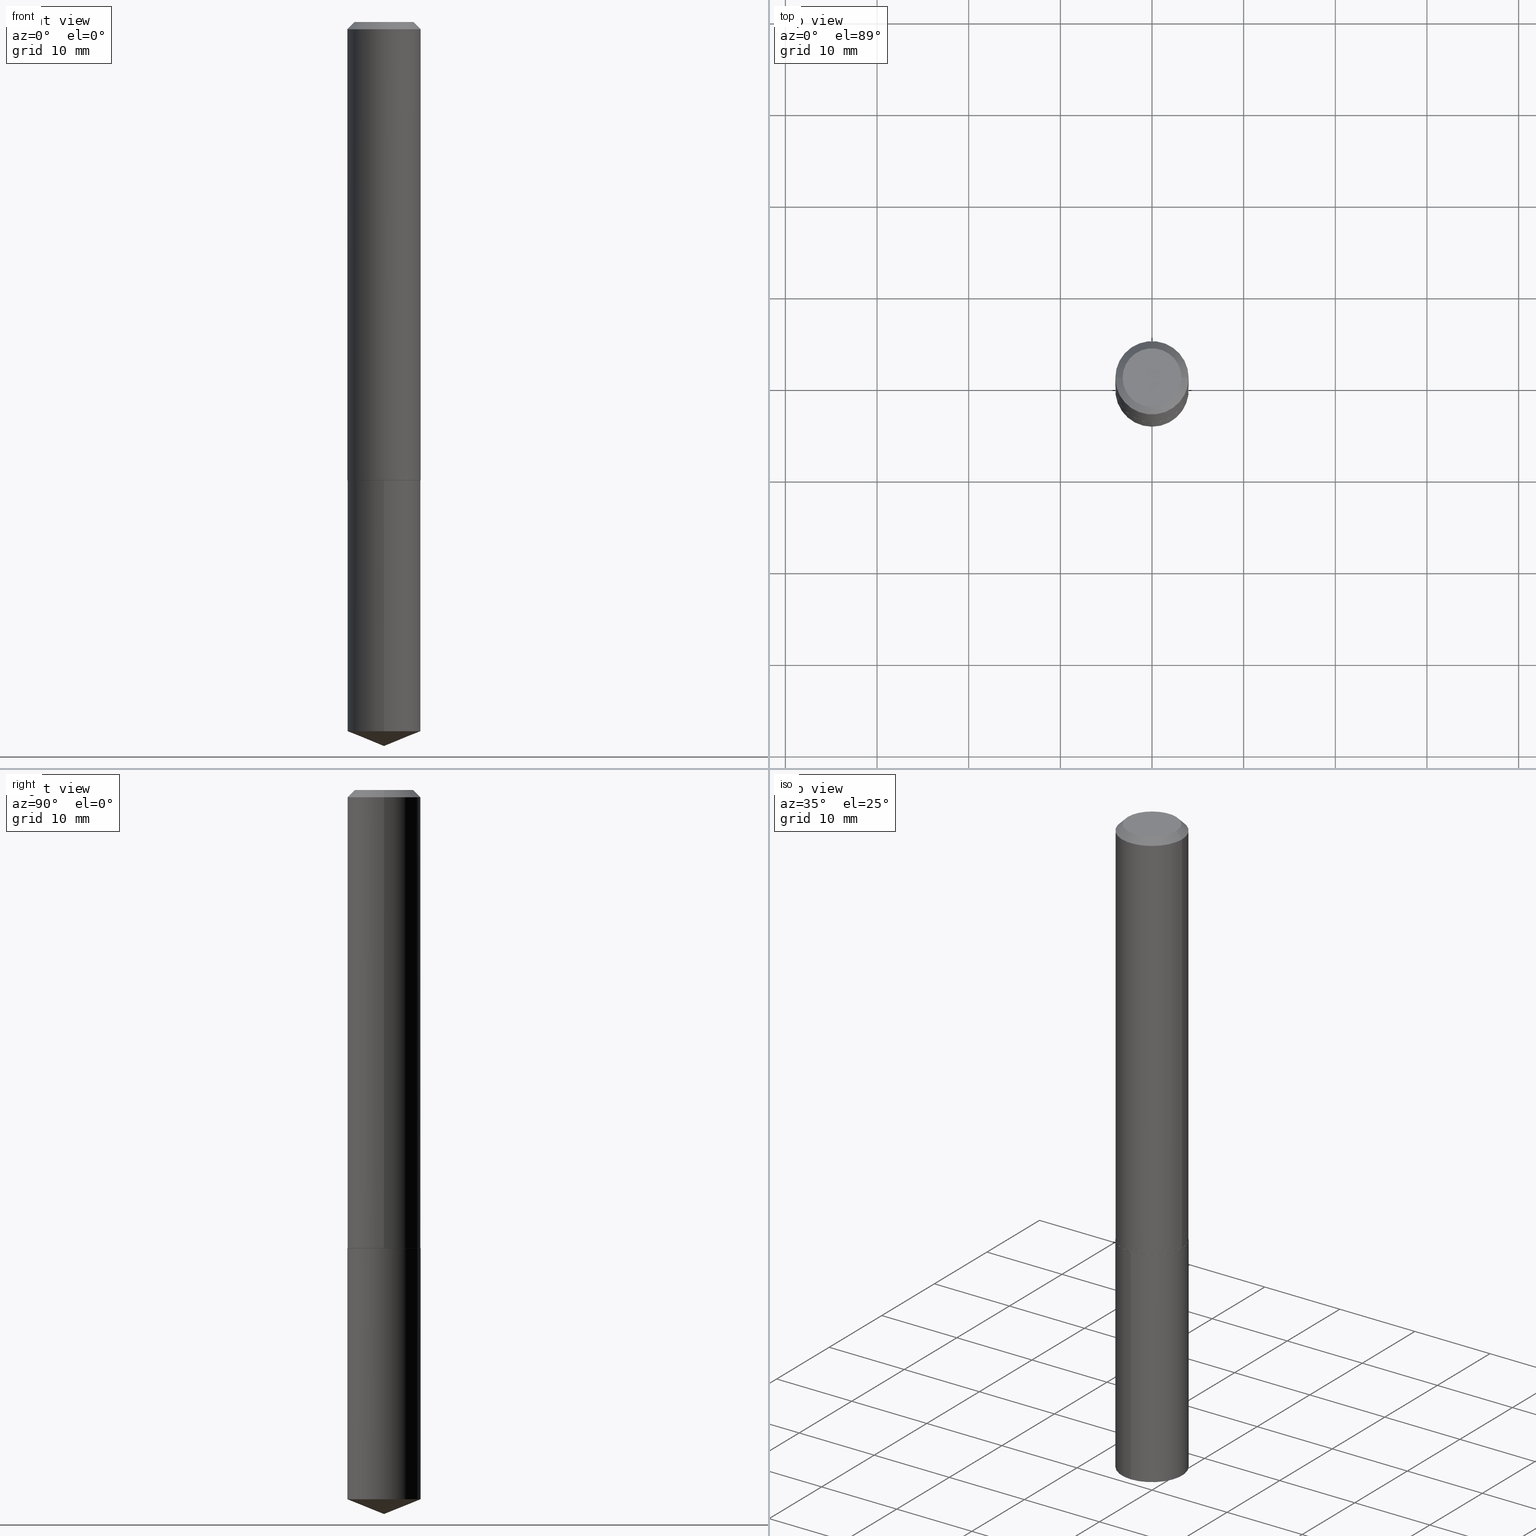
[diagram: canonical four-view strip — front | top / right | iso, engineering-drawing reading convention]
A machine part, canonical four-view strip (front | top / right | iso — engineering-drawing reading convention). The complete STEP part file that produces these views, byte-faithful:
ISO-10303-21;
HEADER;
FILE_DESCRIPTION (( 'STEP AP203' ),
    '1' );
FILE_NAME ('69170.STEP',
    '2024-04-23T14:46:03',
    ( '' ),
    ( '' ),
    'SwSTEP 2.0',
    'SolidWorks 2023',
    '' );
FILE_SCHEMA (( 'CONFIG_CONTROL_DESIGN' ));
ENDSEC;

DATA;
#1 = CARTESIAN_POINT ( 'NONE',  ( 7.642090019328603538E-31, -1.091087918388490390E-16, -0.03125000000000021511 ) ) ;
#2 = DIRECTION ( 'NONE',  ( 1.000000000000000000, -6.982962677686268288E-15, 0.000000000000000000 ) ) ;
#3 = CC_DESIGN_PERSON_AND_ORGANIZATION_ASSIGNMENT ( #48, #162, ( #182 ) ) ;
#4 = ORIENTED_EDGE ( 'NONE', *, *, #214, .F. ) ;
#5 = AXIS2_PLACEMENT_3D ( 'NONE', #250, #99, #66 ) ;
#6 = PERSON ( 'UNSPECIFIED', 'UNSPECIFIED', 'UNSPECIFIED', ('UNSPECIFIED'), ('UNSPECIFIED'), ('UNSPECIFIED') ) ;
#7 = CARTESIAN_POINT ( 'NONE',  ( 0.1575000000000000011, -1.189637226487865274E-15, -0.03125000000000021511 ) ) ;
#8 = ORIENTED_EDGE ( 'NONE', *, *, #189, .F. ) ;
#9 = PRODUCT_DEFINITION_SHAPE ( 'NONE', 'NONE',  #182 ) ;
#10 = DIRECTION ( 'NONE',  ( 1.000000000000000000, -6.982962677686268288E-15, 0.000000000000000000 ) ) ;
#11 = DIMENSIONAL_EXPONENTS ( 1.000000000000000000, 0.000000000000000000, 0.000000000000000000, 0.000000000000000000, 0.000000000000000000, 0.000000000000000000, 0.000000000000000000 ) ;
#12 = ADVANCED_FACE ( 'NONE', ( #382 ), #298, .T. ) ;
#13 = DIRECTION ( 'NONE',  ( 1.000000000000000000, -6.982962677686265922E-15, 4.876176775795935232E-29 ) ) ;
#14 = CIRCLE ( 'NONE', #108, 0.1262499999999999734 ) ;
#15 = ADVANCED_FACE ( 'NONE', ( #385 ), #117, .T. ) ;
#16 = COORDINATED_UNIVERSAL_TIME_OFFSET ( 5, 0, .BEHIND. ) ;
#17 = PERSON_AND_ORGANIZATION ( #6, #39 ) ;
#18 = ORIENTED_EDGE ( 'NONE', *, *, #214, .T. ) ;
#19 = FACE_OUTER_BOUND ( 'NONE', #128, .T. ) ;
#20 = EDGE_LOOP ( 'NONE', ( #289, #262, #4 ) ) ;
#21 = ADVANCED_FACE ( 'NONE', ( #232 ), #383, .F. ) ;
#22 =( NAMED_UNIT ( * ) SI_UNIT ( $, .STERADIAN. ) SOLID_ANGLE_UNIT ( ) );
#23 = VECTOR ( 'NONE', #183, 39.37007874015748143 ) ;
#24 = EDGE_LOOP ( 'NONE', ( #55, #265, #167, #256 ) ) ;
#25 = AXIS2_PLACEMENT_3D ( 'NONE', #157, #53, #136 ) ;
#26 = APPROVAL_STATUS ( 'not_yet_approved' ) ;
#27 = LINE ( 'NONE', #331, #32 ) ;
#28 = CALENDAR_DATE ( 2024, 23, 4 ) ;
#29 = DIRECTION ( 'NONE',  ( -6.982962677686265922E-15, -1.000000000000000000, 3.498761904101816908E-15 ) ) ;
#30 = EDGE_CURVE ( 'NONE', #318, #379, #388, .T. ) ;
#31 = CARTESIAN_POINT ( 'NONE',  ( 0.1575000000000001399, -1.099816621735587875E-15, 7.679978421878605039E-30 ) ) ;
#32 = VECTOR ( 'NONE', #302, 39.37007874015748143 ) ;
#33 = AXIS2_PLACEMENT_3D ( 'NONE', #95, #305, #156 ) ;
#34 = ORIENTED_EDGE ( 'NONE', *, *, #245, .T. ) ;
#35 = DATE_AND_TIME ( #144, #365 ) ;
#36 = PLANE ( 'NONE',  #285 ) ;
#37 = DIRECTION ( 'NONE',  ( 0.7071067811865451302, -7.319954787623248157E-15, -0.7071067811865499042 ) ) ;
#38 = AXIS2_PLACEMENT_3D ( 'NONE', #303, #47, #94 ) ;
#39 = ORGANIZATION ( 'UNSPECIFIED', 'UNSPECIFIED', '' ) ;
#40 = DIRECTION ( 'NONE',  ( -1.000000000000000000, 6.982962677686265922E-15, 0.000000000000000000 ) ) ;
#41 = APPROVAL ( #288, 'UNSPECIFIED' ) ;
#42 = DIRECTION ( 'NONE',  ( 0.7071067811862336017, -2.468850131078969088E-15, 0.7071067811868614328 ) ) ;
#43 = EDGE_LOOP ( 'NONE', ( #229, #353, #277, #169 ) ) ;
#44 = LINE ( 'NONE', #218, #96 ) ;
#45 = ORIENTED_EDGE ( 'NONE', *, *, #235, .F. ) ;
#46 = AXIS2_PLACEMENT_3D ( 'NONE', #372, #342, #75 ) ;
#47 = DIRECTION ( 'NONE',  ( -2.447474477797698207E-29, 3.488609102938218412E-15, 1.000000000000000000 ) ) ;
#48 = PERSON_AND_ORGANIZATION ( #6, #39 ) ;
#49 = ADVANCED_FACE ( 'NONE', ( #61 ), #159, .T. ) ;
#50 = MECHANICAL_CONTEXT ( 'NONE', #349, 'mechanical' ) ;
#51 =( NAMED_UNIT ( * ) PLANE_ANGLE_UNIT ( ) SI_UNIT ( $, .RADIAN. ) );
#52 = VERTEX_POINT ( 'NONE', #234 ) ;
#53 = DIRECTION ( 'NONE',  ( -2.447474477797698207E-29, 3.488609102938218412E-15, 1.000000000000000000 ) ) ;
#54 = CC_DESIGN_DATE_AND_TIME_ASSIGNMENT ( #133, #255, ( #182 ) ) ;
#55 = ORIENTED_EDGE ( 'NONE', *, *, #123, .F. ) ;
#56 = COORDINATED_UNIVERSAL_TIME_OFFSET ( 5, 0, .BEHIND. ) ;
#57 = VERTEX_POINT ( 'NONE', #92 ) ;
#58 = VECTOR ( 'NONE', #309, 39.37007874015748143 ) ;
#59 = DIRECTION ( 'NONE',  ( 1.000000000000000000, -6.982962677686268288E-15, 0.000000000000000000 ) ) ;
#60 = ORIENTED_EDGE ( 'NONE', *, *, #280, .T. ) ;
#61 = FACE_OUTER_BOUND ( 'NONE', #346, .T. ) ;
#62 = DIRECTION ( 'NONE',  ( -2.445468806185136597E-29, 3.491481338843145583E-15, 1.000000000000000000 ) ) ;
#63 = APPROVAL_ROLE ( '' ) ;
#64 = ORIENTED_EDGE ( 'NONE', *, *, #336, .T. ) ;
#65 = CARTESIAN_POINT ( 'NONE',  ( 1.119104808822231954E-15, 0.1574999999999893707, -3.046565869430963858 ) ) ;
#66 = DIRECTION ( 'NONE',  ( 1.000000000000000000, -6.982962677686265922E-15, 0.000000000000000000 ) ) ;
#67 = CIRCLE ( 'NONE', #260, 0.1570000000000008056 ) ;
#68 = DIRECTION ( 'NONE',  ( 1.000000000000000000, -6.982962677686267499E-15, 4.876009584780190244E-29 ) ) ;
#69 = DIRECTION ( 'NONE',  ( -2.445468806185136597E-29, 3.491481338843145583E-15, 1.000000000000000000 ) ) ;
#70 = VERTEX_POINT ( 'NONE', #148 ) ;
#71 = EDGE_CURVE ( 'NONE', #160, #107, #14, .T. ) ;
#72 = DIRECTION ( 'NONE',  ( -2.445468806185136597E-29, 3.491481338843145583E-15, 1.000000000000000000 ) ) ;
#73 = AXIS2_PLACEMENT_3D ( 'NONE', #172, #86, #296 ) ;
#74 = LOCAL_TIME ( 10, 46, 3.000000000000000000, #147 ) ;
#75 = DIRECTION ( 'NONE',  ( 1.000000000000000000, 0.000000000000000000, 0.000000000000000000 ) ) ;
#76 = EDGE_CURVE ( 'NONE', #318, #52, #297, .T. ) ;
#77 = CARTESIAN_POINT ( 'NONE',  ( -0.1575000000000002787, -5.752130466021151023E-15, -1.968000000000000194 ) ) ;
#78 = CARTESIAN_POINT ( 'NONE',  ( -0.1575000000000002787, -5.752130466021151023E-15, -1.968000000000000194 ) ) ;
#79 = ORIENTED_EDGE ( 'NONE', *, *, #179, .T. ) ;
#80 = CARTESIAN_POINT ( 'NONE',  ( 0.000000000000000000, 0.000000000000000000, 0.000000000000000000 ) ) ;
#81 = ORIENTED_EDGE ( 'NONE', *, *, #134, .T. ) ;
#82 = APPROVAL_ROLE ( '' ) ;
#83 = ORIENTED_EDGE ( 'NONE', *, *, #348, .F. ) ;
#84 = ADVANCED_FACE ( 'NONE', ( #294 ), #36, .F. ) ;
#85 = CONICAL_SURFACE ( 'NONE', #266, 0.1575000000000000011, 0.7853981633974449483 ) ;
#86 = DIRECTION ( 'NONE',  ( 2.438088387897960049E-29, -3.491481338843145188E-15, -1.000000000000000000 ) ) ;
#87 = APPROVAL ( #26, 'UNSPECIFIED' ) ;
#88 = DIRECTION ( 'NONE',  ( 1.000000000000000000, -6.982962677686267499E-15, 4.876009584780190244E-29 ) ) ;
#89 = SECURITY_CLASSIFICATION_LEVEL ( 'unclassified' ) ;
#90 = CARTESIAN_POINT ( 'NONE',  ( 0.000000000000000000, 0.000000000000000000, 0.000000000000000000 ) ) ;
#91 = PERSON_AND_ORGANIZATION ( #6, #39 ) ;
#92 = CARTESIAN_POINT ( 'NONE',  ( 0.1570000000000008056, -7.969306155909481702E-15, -1.968500000000000139 ) ) ;
#93 = DIRECTION ( 'NONE',  ( 1.000000000000000000, -6.982962677686265922E-15, 0.000000000000000000 ) ) ;
#94 = DIRECTION ( 'NONE',  ( -6.982962677686264344E-15, -1.000000000000000000, 3.469013325287953293E-15 ) ) ;
#95 = CARTESIAN_POINT ( 'NONE',  ( 4.812682610572349594E-29, -6.871235274843310993E-15, -1.968000000000000194 ) ) ;
#96 = VECTOR ( 'NONE', #42, 39.37007874015748143 ) ;
#97 = CARTESIAN_POINT ( 'NONE',  ( -0.1575000000000000011, -2.371067224518920471E-15, -0.03125000000000021511 ) ) ;
#98 = ORIENTED_EDGE ( 'NONE', *, *, #219, .F. ) ;
#99 = DIRECTION ( 'NONE',  ( -2.445468806185136597E-29, 3.491481338843145583E-15, 1.000000000000000000 ) ) ;
#100 = CLOSED_SHELL ( 'NONE', ( #276, #389, #201, #257, #322, #15, #264, #21 ) ) ;
#101 = CIRCLE ( 'NONE', #271, 0.1575000000000002787 ) ;
#102 = CARTESIAN_POINT ( 'NONE',  ( 4.813905344975441835E-29, -6.872981015512731707E-15, -1.968500000000000139 ) ) ;
#103 = LENGTH_MEASURE_WITH_UNIT ( LENGTH_MEASURE( 0.02539999999999999897 ), #226 );
#104 = ORIENTED_EDGE ( 'NONE', *, *, #205, .T. ) ;
#105 = ADVANCED_FACE ( 'NONE', ( #360 ), #267, .T. ) ;
#106 = DIRECTION ( 'NONE',  ( 1.000000000000000000, -6.982962677686265922E-15, 0.000000000000000000 ) ) ;
#107 = VERTEX_POINT ( 'NONE', #358 ) ;
#108 = AXIS2_PLACEMENT_3D ( 'NONE', #174, #357, #88 ) ;
#109 = APPROVAL_ROLE ( '' ) ;
#110 = EDGE_LOOP ( 'NONE', ( #18, #131, #98, #258 ) ) ;
#111 = PERSON_AND_ORGANIZATION ( #6, #39 ) ;
#112 = ORIENTED_EDGE ( 'NONE', *, *, #223, .T. ) ;
#113 = CC_DESIGN_PERSON_AND_ORGANIZATION_ASSIGNMENT ( #330, #384, ( #240 ) ) ;
#114 = DIRECTION ( 'NONE',  ( -6.982962677686264344E-15, -1.000000000000000000, 3.469013325287953293E-15 ) ) ;
#115 = AXIS2_PLACEMENT_3D ( 'NONE', #203, #177, #59 ) ;
#116 = CARTESIAN_POINT ( 'NONE',  ( -8.874907594914411373E-28, 1.264908890479705024E-13, 36.25987874015748247 ) ) ;
#117 = CYLINDRICAL_SURFACE ( 'NONE', #247, 0.1575000000000001399 ) ;
#118 = EDGE_CURVE ( 'NONE', #171, #141, #27, .T. ) ;
#119 = CALENDAR_DATE ( 2024, 23, 4 ) ;
#120 = DIRECTION ( 'NONE',  ( 1.000000000000000000, -6.982962677686265922E-15, 4.876176775795935232E-29 ) ) ;
#121 = DIRECTION ( 'NONE',  ( -2.445468806185136877E-29, 3.491481338843145188E-15, 1.000000000000000000 ) ) ;
#122 = CIRCLE ( 'NONE', #329, 0.1262499999999999734 ) ;
#123 = EDGE_CURVE ( 'NONE', #225, #287, #270, .T. ) ;
#124 = CARTESIAN_POINT ( 'NONE',  ( -0.1575000000000000011, 9.907078298967379852E-16, -0.03125000000000021511 ) ) ;
#125 = DIRECTION ( 'NONE',  ( -1.000000000000000000, 6.982962677686265922E-15, 0.000000000000000000 ) ) ;
#126 = CARTESIAN_POINT ( 'NONE',  ( -0.1575000000000001399, 1.119104808822158787E-15, -7.747322767151482590E-30 ) ) ;
#127 = CONICAL_SURFACE ( 'NONE', #186, 0.1575000000000002787, 0.7853981633970044118 ) ;
#128 = EDGE_LOOP ( 'NONE', ( #290, #196, #351, #319 ) ) ;
#129 = LOCAL_TIME ( 10, 46, 3.000000000000000000, #16 ) ;
#130 = LINE ( 'NONE', #7, #221 ) ;
#131 = ORIENTED_EDGE ( 'NONE', *, *, #123, .T. ) ;
#132 = PLANE ( 'NONE',  #198 ) ;
#133 = DATE_AND_TIME ( #283, #187 ) ;
#134 = EDGE_CURVE ( 'NONE', #57, #194, #291, .T. ) ;
#135 = UNCERTAINTY_MEASURE_WITH_UNIT (LENGTH_MEASURE( 1.000000000000000082E-05 ), #138, 'distance_accuracy_value', 'NONE');
#136 = DIRECTION ( 'NONE',  ( -6.982962677686264344E-15, -1.000000000000000000, 3.469013325287953293E-15 ) ) ;
#137 = ORIENTED_EDGE ( 'NONE', *, *, #118, .T. ) ;
#138 =( CONVERSION_BASED_UNIT ( 'INCH', #103 ) LENGTH_UNIT ( ) NAMED_UNIT ( #11 ) );
#139 = ORIENTED_EDGE ( 'NONE', *, *, #71, .T. ) ;
#140 = AXIS2_PLACEMENT_3D ( 'NONE', #80, #284, #13 ) ;
#141 = VERTEX_POINT ( 'NONE', #320 ) ;
#142 = CARTESIAN_POINT ( 'NONE',  ( 0.1262499999999999734, -1.027887549353260543E-15, 4.825108388647252249E-18 ) ) ;
#143 = DIRECTION ( 'NONE',  ( -2.447474477797698207E-29, 3.488609102938218412E-15, 1.000000000000000000 ) ) ;
#144 = CALENDAR_DATE ( 2024, 23, 4 ) ;
#145 = AXIS2_PLACEMENT_3D ( 'NONE', #1, #211, #125 ) ;
#146 = DIRECTION ( 'NONE',  ( 2.447474477797698207E-29, -3.488609102938218017E-15, -1.000000000000000000 ) ) ;
#147 = COORDINATED_UNIVERSAL_TIME_OFFSET ( 5, 0, .BEHIND. ) ;
#148 = CARTESIAN_POINT ( 'NONE',  ( -1.099816621735538768E-15, -0.1575000000000068567, -1.968499999999999472 ) ) ;
#149 = CARTESIAN_POINT ( 'NONE',  ( 1.119104808822205527E-15, 0.1574999999999931177, -1.968500000000000583 ) ) ;
#150 = DIRECTION ( 'NONE',  ( -2.445468806185136597E-29, 3.491481338843145583E-15, 1.000000000000000000 ) ) ;
#151 = VECTOR ( 'NONE', #121, 39.37007874015748143 ) ;
#152 = AXIS2_PLACEMENT_3D ( 'NONE', #102, #224, #313 ) ;
#153 = VECTOR ( 'NONE', #188, 39.37007874015748854 ) ;
#154 = CC_DESIGN_PERSON_AND_ORGANIZATION_ASSIGNMENT ( #359, #293, ( #240 ) ) ;
#155 = FACE_OUTER_BOUND ( 'NONE', #316, .T. ) ;
#156 = DIRECTION ( 'NONE',  ( 1.000000000000000000, -6.982962677686268288E-15, 0.000000000000000000 ) ) ;
#157 = CARTESIAN_POINT ( 'NONE',  ( 7.452444045792510056E-29, -1.063393142117659408E-14, -3.046565869430963414 ) ) ;
#158 = CC_DESIGN_PERSON_AND_ORGANIZATION_ASSIGNMENT ( #286, #317, ( #216 ) ) ;
#159 = CONICAL_SURFACE ( 'NONE', #227, 97.44436430772871915, 1.186823891356145966 ) ;
#160 = VERTEX_POINT ( 'NONE', #142 ) ;
#161 = DIRECTION ( 'NONE',  ( -2.445468806185136597E-29, 3.491481338843145583E-15, 1.000000000000000000 ) ) ;
#162 = PERSON_AND_ORGANIZATION_ROLE ( 'creator' ) ;
#163 = APPLICATION_PROTOCOL_DEFINITION ( 'international standard', 'config_control_design', 1994, #243 ) ;
#164 = AXIS2_PLACEMENT_3D ( 'NONE', #178, #210, #244 ) ;
#165 = APPROVAL_PERSON_ORGANIZATION ( #373, #363, #63 ) ;
#166 = ORIENTED_EDGE ( 'NONE', *, *, #189, .T. ) ;
#167 = ORIENTED_EDGE ( 'NONE', *, *, #173, .T. ) ;
#168 = DIRECTION ( 'NONE',  ( -0.7071067811862336017, 7.493145998869219778E-15, 0.7071067811868614328 ) ) ;
#169 = ORIENTED_EDGE ( 'NONE', *, *, #179, .F. ) ;
#170 = DATE_AND_TIME ( #28, #74 ) ;
#171 = VERTEX_POINT ( 'NONE', #263 ) ;
#172 = CARTESIAN_POINT ( 'NONE',  ( -5.899826025441377755E-47, 8.423387948417044672E-33, 2.412554194320287718E-18 ) ) ;
#173 = EDGE_CURVE ( 'NONE', #141, #70, #381, .T. ) ;
#174 = CARTESIAN_POINT ( 'NONE',  ( -1.179965205088275551E-46, 1.684677589683408934E-32, 4.825108388640575435E-18 ) ) ;
#175 = AXIS2_PLACEMENT_3D ( 'NONE', #368, #341, #335 ) ;
#176 = DIRECTION ( 'NONE',  ( -2.447474477797698207E-29, 3.488609102938218412E-15, 1.000000000000000000 ) ) ;
#177 = DIRECTION ( 'NONE',  ( -2.445468806185136597E-29, 3.491481338843145583E-15, 1.000000000000000000 ) ) ;
#178 = CARTESIAN_POINT ( 'NONE',  ( 4.813905344975441835E-29, -6.872981015512731707E-15, -1.968500000000000139 ) ) ;
#179 = EDGE_CURVE ( 'NONE', #328, #52, #310, .T. ) ;
#180 = CYLINDRICAL_SURFACE ( 'NONE', #38, 0.1575000000000000011 ) ;
#181 = CARTESIAN_POINT ( 'NONE',  ( 1.119104808822231954E-15, 0.1574999999999931177, -1.968500000000000583 ) ) ;
#182 = PRODUCT_DEFINITION ( 'UNKNOWN', '', #240, #307 ) ;
#183 = DIRECTION ( 'NONE',  ( -0.7071067811865451302, 2.468850131082231817E-15, -0.7071067811865499042 ) ) ;
#184 = EDGE_LOOP ( 'NONE', ( #81, #251, #326, #380 ) ) ;
#185 = CARTESIAN_POINT ( 'NONE',  ( -0.1570000000000008056, -5.754779693195259857E-15, -1.968500000000000139 ) ) ;
#186 = AXIS2_PLACEMENT_3D ( 'NONE', #242, #150, #2 ) ;
#187 = LOCAL_TIME ( 10, 46, 3.000000000000000000, #56 ) ;
#188 = DIRECTION ( 'NONE',  ( 6.588037525764792868E-15, 0.9271838545667893117, 0.3746065934159070188 ) ) ;
#189 = EDGE_CURVE ( 'NONE', #107, #160, #122, .T. ) ;
#190 = ADVANCED_BREP_SHAPE_REPRESENTATION ( '69170', ( #374, #377, #46 ), #199 ) ;
#191 = ORIENTED_EDGE ( 'NONE', *, *, #334, .F. ) ;
#192 = CLOSED_SHELL ( 'NONE', ( #253, #12, #49, #105, #84 ) ) ;
#193 = CARTESIAN_POINT ( 'NONE',  ( 4.813905344975441835E-29, -6.872981015512731707E-15, -1.968500000000000139 ) ) ;
#194 = VERTEX_POINT ( 'NONE', #185 ) ;
#195 = DIRECTION ( 'NONE',  ( -2.445468806185136597E-29, 3.491481338843145583E-15, 1.000000000000000000 ) ) ;
#196 = ORIENTED_EDGE ( 'NONE', *, *, #327, .T. ) ;
#197 = EDGE_LOOP ( 'NONE', ( #166, #139 ) ) ;
#198 = AXIS2_PLACEMENT_3D ( 'NONE', #370, #209, #332 ) ;
#199 =( GEOMETRIC_REPRESENTATION_CONTEXT ( 3 ) GLOBAL_UNCERTAINTY_ASSIGNED_CONTEXT ( ( #135 ) ) GLOBAL_UNIT_ASSIGNED_CONTEXT ( ( #138, #51, #22 ) ) REPRESENTATION_CONTEXT ( 'NONE', 'WORKASPACE' ) );
#200 = ORIENTED_EDGE ( 'NONE', *, *, #333, .F. ) ;
#201 = ADVANCED_FACE ( 'NONE', ( #274 ), #127, .T. ) ;
#202 = APPROVAL_STATUS ( 'not_yet_approved' ) ;
#203 = CARTESIAN_POINT ( 'NONE',  ( 4.812682610572349594E-29, -6.871235274843310993E-15, -1.968000000000000194 ) ) ;
#204 = DIRECTION ( 'NONE',  ( -6.982962677686265922E-15, -1.000000000000000000, 3.498761904101816908E-15 ) ) ;
#205 = EDGE_CURVE ( 'NONE', #107, #328, #252, .T. ) ;
#206 = APPROVAL_DATE_TIME ( #237, #87 ) ;
#207 = CC_DESIGN_APPROVAL ( #87, ( #356 ) ) ;
#208 = CARTESIAN_POINT ( 'NONE',  ( 4.813905344975441835E-29, -6.872981015512731707E-15, -1.968500000000000139 ) ) ;
#209 = DIRECTION ( 'NONE',  ( -2.438088387897960049E-29, 3.491481338843145188E-15, 1.000000000000000000 ) ) ;
#210 = DIRECTION ( 'NONE',  ( -2.447474477797698207E-29, 3.488609102938218412E-15, 1.000000000000000000 ) ) ;
#211 = DIRECTION ( 'NONE',  ( 2.445468806185136597E-29, -3.491481338843145583E-15, -1.000000000000000000 ) ) ;
#212 = CIRCLE ( 'NONE', #5, 0.1575000000000000011 ) ;
#213 = APPROVAL_PERSON_ORGANIZATION ( #111, #87, #82 ) ;
#214 = EDGE_CURVE ( 'NONE', #141, #225, #272, .T. ) ;
#215 = CARTESIAN_POINT ( 'NONE',  ( 7.642090019328603538E-31, -1.091087918388490390E-16, -0.03125000000000021511 ) ) ;
#216 = PRODUCT ( '69170', '69170', '', ( #50 ) ) ;
#217 = EDGE_LOOP ( 'NONE', ( #249, #8, #104, #79 ) ) ;
#218 = CARTESIAN_POINT ( 'NONE',  ( 0.1575000000000002787, -7.971051896578899262E-15, -1.968000000000000194 ) ) ;
#219 = EDGE_CURVE ( 'NONE', #70, #287, #343, .T. ) ;
#220 = CYLINDRICAL_SURFACE ( 'NONE', #140, 0.1575000000000001399 ) ;
#221 = VECTOR ( 'NONE', #37, 39.37007874015748143 ) ;
#222 = APPROVAL_PERSON_ORGANIZATION ( #17, #41, #109 ) ;
#223 = EDGE_CURVE ( 'NONE', #160, #52, #130, .T. ) ;
#224 = DIRECTION ( 'NONE',  ( -2.447474477797698207E-29, 3.488609102938218412E-15, 1.000000000000000000 ) ) ;
#225 = VERTEX_POINT ( 'NONE', #65 ) ;
#226 =( LENGTH_UNIT ( ) NAMED_UNIT ( * ) SI_UNIT ( $, .METRE. ) );
#227 = AXIS2_PLACEMENT_3D ( 'NONE', #116, #176, #29 ) ;
#228 = CALENDAR_DATE ( 2024, 23, 4 ) ;
#229 = ORIENTED_EDGE ( 'NONE', *, *, #327, .F. ) ;
#230 = PERSON_AND_ORGANIZATION_ROLE ( 'classification_officer' ) ;
#231 = ORIENTED_EDGE ( 'NONE', *, *, #134, .F. ) ;
#232 = FACE_OUTER_BOUND ( 'NONE', #197, .T. ) ;
#233 = CONICAL_SURFACE ( 'NONE', #33, 0.1575000000000002787, 0.7853981633970044118 ) ;
#234 = CARTESIAN_POINT ( 'NONE',  ( 0.1575000000000000011, -1.208925413574435989E-15, -0.03125000000000021511 ) ) ;
#235 = EDGE_CURVE ( 'NONE', #379, #318, #101, .T. ) ;
#236 = DIRECTION ( 'NONE',  ( -2.447474477797698207E-29, 3.488609102938218412E-15, 1.000000000000000000 ) ) ;
#237 = DATE_AND_TIME ( #119, #248 ) ;
#238 = DIRECTION ( 'NONE',  ( 6.982962677686265922E-15, 1.000000000000000000, -3.488609102938218017E-15 ) ) ;
#239 = CC_DESIGN_PERSON_AND_ORGANIZATION_ASSIGNMENT ( #91, #230, ( #356 ) ) ;
#240 = PRODUCT_DEFINITION_FORMATION_WITH_SPECIFIED_SOURCE ( 'ANY', '', #216, .NOT_KNOWN. ) ;
#241 = CARTESIAN_POINT ( 'NONE',  ( 4.813905344975441835E-29, -6.872981015512731707E-15, -1.968500000000000139 ) ) ;
#242 = CARTESIAN_POINT ( 'NONE',  ( 4.812682610572349594E-29, -6.871235274843310993E-15, -1.968000000000000194 ) ) ;
#243 = APPLICATION_CONTEXT ( 'configuration controlled 3d designs of mechanical parts and assemblies' ) ;
#244 = DIRECTION ( 'NONE',  ( -6.982962677686264344E-15, -1.000000000000000000, 3.469013325287953293E-15 ) ) ;
#245 = EDGE_CURVE ( 'NONE', #52, #328, #212, .T. ) ;
#246 = CARTESIAN_POINT ( 'NONE',  ( 4.812682610572349594E-29, -6.871235274843310993E-15, -1.968000000000000194 ) ) ;
#247 = AXIS2_PLACEMENT_3D ( 'NONE', #90, #62, #120 ) ;
#248 = LOCAL_TIME ( 10, 46, 3.000000000000000000, #301 ) ;
#249 = ORIENTED_EDGE ( 'NONE', *, *, #223, .F. ) ;
#250 = CARTESIAN_POINT ( 'NONE',  ( 7.642090019328603538E-31, -1.091087918388490390E-16, -0.03125000000000021511 ) ) ;
#251 = ORIENTED_EDGE ( 'NONE', *, *, #334, .T. ) ;
#252 = LINE ( 'NONE', #124, #23 ) ;
#253 = ADVANCED_FACE ( 'NONE', ( #306 ), #180, .T. ) ;
#254 = LINE ( 'NONE', #78, #337 ) ;
#255 = DATE_TIME_ROLE ( 'creation_date' ) ;
#256 = ORIENTED_EDGE ( 'NONE', *, *, #386, .F. ) ;
#257 = ADVANCED_FACE ( 'NONE', ( #273 ), #132, .F. ) ;
#258 = ORIENTED_EDGE ( 'NONE', *, *, #173, .F. ) ;
#259 = AXIS2_PLACEMENT_3D ( 'NONE', #300, #143, #204 ) ;
#260 = AXIS2_PLACEMENT_3D ( 'NONE', #193, #195, #106 ) ;
#261 = LINE ( 'NONE', #375, #153 ) ;
#262 = ORIENTED_EDGE ( 'NONE', *, *, #348, .T. ) ;
#263 = CARTESIAN_POINT ( 'NONE',  ( 7.612135120846402038E-29, -1.085027203195844731E-14, -3.110199999999999854 ) ) ;
#264 = ADVANCED_FACE ( 'NONE', ( #390 ), #85, .T. ) ;
#265 = ORIENTED_EDGE ( 'NONE', *, *, #333, .T. ) ;
#266 = AXIS2_PLACEMENT_3D ( 'NONE', #362, #304, #40 ) ;
#267 = CYLINDRICAL_SURFACE ( 'NONE', #371, 0.1575000000000000011 ) ;
#268 = APPROVAL_DATE_TIME ( #170, #363 ) ;
#269 = CARTESIAN_POINT ( 'NONE',  ( 4.813905344975441835E-29, -6.872981015512731707E-15, -1.968500000000000139 ) ) ;
#270 = LINE ( 'NONE', #149, #321 ) ;
#271 = AXIS2_PLACEMENT_3D ( 'NONE', #246, #72, #10 ) ;
#272 = CIRCLE ( 'NONE', #175, 0.1575000000000000011 ) ;
#273 = FACE_OUTER_BOUND ( 'NONE', #369, .T. ) ;
#274 = FACE_OUTER_BOUND ( 'NONE', #184, .T. ) ;
#275 = LINE ( 'NONE', #126, #279 ) ;
#276 = ADVANCED_FACE ( 'NONE', ( #155 ), #315, .T. ) ;
#277 = ORIENTED_EDGE ( 'NONE', *, *, #76, .T. ) ;
#278 = CARTESIAN_POINT ( 'NONE',  ( -1.099816621735538768E-15, -0.1575000000000068567, -1.968499999999999472 ) ) ;
#279 = VECTOR ( 'NONE', #366, 39.37007874015748143 ) ;
#280 = EDGE_CURVE ( 'NONE', #57, #318, #44, .T. ) ;
#281 = ORIENTED_EDGE ( 'NONE', *, *, #386, .T. ) ;
#282 = CARTESIAN_POINT ( 'NONE',  ( -1.179965205088275551E-46, 1.684677589683408934E-32, 4.825108388640575435E-18 ) ) ;
#283 = CALENDAR_DATE ( 2024, 23, 4 ) ;
#284 = DIRECTION ( 'NONE',  ( -2.445468806185136597E-29, 3.491481338843145583E-15, 1.000000000000000000 ) ) ;
#285 = AXIS2_PLACEMENT_3D ( 'NONE', #269, #146, #238 ) ;
#286 = PERSON_AND_ORGANIZATION ( #6, #39 ) ;
#287 = VERTEX_POINT ( 'NONE', #181 ) ;
#288 = APPROVAL_STATUS ( 'not_yet_approved' ) ;
#289 = ORIENTED_EDGE ( 'NONE', *, *, #118, .F. ) ;
#290 = ORIENTED_EDGE ( 'NONE', *, *, #30, .T. ) ;
#291 = CIRCLE ( 'NONE', #378, 0.1570000000000008056 ) ;
#292 = CC_DESIGN_APPROVAL ( #363, ( #240 ) ) ;
#293 = PERSON_AND_ORGANIZATION_ROLE ( 'creator' ) ;
#294 = FACE_OUTER_BOUND ( 'NONE', #308, .T. ) ;
#295 = PRODUCT_RELATED_PRODUCT_CATEGORY ( 'detail', '', ( #216 ) ) ;
#296 = DIRECTION ( 'NONE',  ( -1.000000000000000000, 6.982962677686265922E-15, -4.876176775795935793E-29 ) ) ;
#297 = LINE ( 'NONE', #31, #151 ) ;
#298 = CONICAL_SURFACE ( 'NONE', #259, 97.44436430772871915, 1.186823891356145966 ) ;
#299 = SHAPE_DEFINITION_REPRESENTATION ( #9, #190 ) ;
#300 = CARTESIAN_POINT ( 'NONE',  ( -8.874907594914411373E-28, 1.264908890479705024E-13, 36.25987874015748247 ) ) ;
#301 = COORDINATED_UNIVERSAL_TIME_OFFSET ( 5, 0, .BEHIND. ) ;
#302 = DIRECTION ( 'NONE',  ( -6.474490251793180995E-15, -0.9271838545667867582, 0.3746065934159135136 ) ) ;
#303 = CARTESIAN_POINT ( 'NONE',  ( 4.813905344975441835E-29, -6.872981015512731707E-15, -1.968500000000000139 ) ) ;
#304 = DIRECTION ( 'NONE',  ( 2.445468806185136597E-29, -3.491481338843145583E-15, -1.000000000000000000 ) ) ;
#305 = DIRECTION ( 'NONE',  ( -2.445468806185136597E-29, 3.491481338843145583E-15, 1.000000000000000000 ) ) ;
#306 = FACE_OUTER_BOUND ( 'NONE', #110, .T. ) ;
#307 = DESIGN_CONTEXT ( 'detailed design', #243, 'design' ) ;
#308 = EDGE_LOOP ( 'NONE', ( #340, #281 ) ) ;
#309 = DIRECTION ( 'NONE',  ( -2.447474477797697927E-29, 3.488609102938218017E-15, 1.000000000000000000 ) ) ;
#310 = CIRCLE ( 'NONE', #355, 0.1575000000000000011 ) ;
#311 = CIRCLE ( 'NONE', #25, 0.1575000000000000011 ) ;
#312 = DATE_AND_TIME ( #228, #129 ) ;
#313 = DIRECTION ( 'NONE',  ( -6.982962677686264344E-15, -1.000000000000000000, 3.469013325287953293E-15 ) ) ;
#314 = APPLICATION_PROTOCOL_DEFINITION ( 'international standard', 'config_control_design', 1994, #349 ) ;
#315 = CONICAL_SURFACE ( 'NONE', #145, 0.1575000000000000011, 0.7853981633974449483 ) ;
#316 = EDGE_LOOP ( 'NONE', ( #376, #112, #34, #367 ) ) ;
#317 = PERSON_AND_ORGANIZATION_ROLE ( 'design_owner' ) ;
#318 = VERTEX_POINT ( 'NONE', #364 ) ;
#319 = ORIENTED_EDGE ( 'NONE', *, *, #76, .F. ) ;
#320 = CARTESIAN_POINT ( 'NONE',  ( -1.099816621735512341E-15, -0.1575000000000106037, -3.046565869430962525 ) ) ;
#321 = VECTOR ( 'NONE', #387, 39.37007874015748143 ) ;
#322 = ADVANCED_FACE ( 'NONE', ( #338 ), #233, .T. ) ;
#323 = CIRCLE ( 'NONE', #152, 0.1575000000000000011 ) ;
#324 = CC_DESIGN_SECURITY_CLASSIFICATION ( #356, ( #240 ) ) ;
#325 = DATE_TIME_ROLE ( 'classification_date' ) ;
#326 = ORIENTED_EDGE ( 'NONE', *, *, #30, .F. ) ;
#327 = EDGE_CURVE ( 'NONE', #379, #328, #275, .T. ) ;
#328 = VERTEX_POINT ( 'NONE', #97 ) ;
#329 = AXIS2_PLACEMENT_3D ( 'NONE', #282, #69, #68 ) ;
#330 = PERSON_AND_ORGANIZATION ( #6, #39 ) ;
#331 = CARTESIAN_POINT ( 'NONE',  ( 7.604238791707747170E-29, -1.086158002471614504E-14, -3.110199999999999854 ) ) ;
#332 = DIRECTION ( 'NONE',  ( 1.000000000000000000, -6.982962677686265922E-15, 4.876176775795935793E-29 ) ) ;
#333 = EDGE_CURVE ( 'NONE', #225, #141, #311, .T. ) ;
#334 = EDGE_CURVE ( 'NONE', #194, #379, #254, .T. ) ;
#335 = DIRECTION ( 'NONE',  ( -6.982962677686264344E-15, -1.000000000000000000, 3.469013325287953293E-15 ) ) ;
#336 = EDGE_CURVE ( 'NONE', #194, #57, #67, .T. ) ;
#337 = VECTOR ( 'NONE', #168, 39.37007874015748143 ) ;
#338 = FACE_OUTER_BOUND ( 'NONE', #344, .T. ) ;
#339 = DIRECTION ( 'NONE',  ( 1.000000000000000000, -6.982962677686265922E-15, 0.000000000000000000 ) ) ;
#340 = ORIENTED_EDGE ( 'NONE', *, *, #219, .T. ) ;
#341 = DIRECTION ( 'NONE',  ( -2.447474477797698207E-29, 3.488609102938218412E-15, 1.000000000000000000 ) ) ;
#342 = DIRECTION ( 'NONE',  ( 0.000000000000000000, 0.000000000000000000, 1.000000000000000000 ) ) ;
#343 = CIRCLE ( 'NONE', #164, 0.1575000000000000011 ) ;
#344 = EDGE_LOOP ( 'NONE', ( #191, #64, #60, #45 ) ) ;
#345 = CC_DESIGN_DATE_AND_TIME_ASSIGNMENT ( #35, #325, ( #356 ) ) ;
#346 = EDGE_LOOP ( 'NONE', ( #83, #137, #200 ) ) ;
#347 = CC_DESIGN_APPROVAL ( #41, ( #182 ) ) ;
#348 = EDGE_CURVE ( 'NONE', #171, #225, #261, .T. ) ;
#349 = APPLICATION_CONTEXT ( 'configuration controlled 3d designs of mechanical parts and assemblies' ) ;
#350 = APPROVAL_DATE_TIME ( #312, #41 ) ;
#351 = ORIENTED_EDGE ( 'NONE', *, *, #245, .F. ) ;
#352 = COORDINATED_UNIVERSAL_TIME_OFFSET ( 5, 0, .BEHIND. ) ;
#353 = ORIENTED_EDGE ( 'NONE', *, *, #235, .T. ) ;
#354 = ORIENTED_EDGE ( 'NONE', *, *, #336, .F. ) ;
#355 = AXIS2_PLACEMENT_3D ( 'NONE', #215, #161, #339 ) ;
#356 = SECURITY_CLASSIFICATION ( '', '', #89 ) ;
#357 = DIRECTION ( 'NONE',  ( -2.445468806185136597E-29, 3.491481338843145583E-15, 1.000000000000000000 ) ) ;
#358 = CARTESIAN_POINT ( 'NONE',  ( -0.1262499999999999734, 9.361534339773144209E-16, 4.825108388634219866E-18 ) ) ;
#359 = PERSON_AND_ORGANIZATION ( #6, #39 ) ;
#360 = FACE_OUTER_BOUND ( 'NONE', #24, .T. ) ;
#361 = DIRECTION ( 'NONE',  ( -2.445468806185136597E-29, 3.491481338843145583E-15, 1.000000000000000000 ) ) ;
#362 = CARTESIAN_POINT ( 'NONE',  ( 7.642090019328603538E-31, -1.091087918388490390E-16, -0.03125000000000021511 ) ) ;
#363 = APPROVAL ( #202, 'UNSPECIFIED' ) ;
#364 = CARTESIAN_POINT ( 'NONE',  ( 0.1575000000000002787, -7.971051896578899262E-15, -1.968000000000000194 ) ) ;
#365 = LOCAL_TIME ( 10, 46, 3.000000000000000000, #352 ) ;
#366 = DIRECTION ( 'NONE',  ( -2.445468806185136877E-29, 3.491481338843145188E-15, 1.000000000000000000 ) ) ;
#367 = ORIENTED_EDGE ( 'NONE', *, *, #205, .F. ) ;
#368 = CARTESIAN_POINT ( 'NONE',  ( 7.452444045792510056E-29, -1.063393142117659408E-14, -3.046565869430963414 ) ) ;
#369 = EDGE_LOOP ( 'NONE', ( #231, #354 ) ) ;
#370 = CARTESIAN_POINT ( 'NONE',  ( 4.813905344975441835E-29, -6.872981015512731707E-15, -1.968500000000000139 ) ) ;
#371 = AXIS2_PLACEMENT_3D ( 'NONE', #208, #236, #114 ) ;
#372 = CARTESIAN_POINT ( 'NONE',  ( 0.000000000000000000, 0.000000000000000000, 0.000000000000000000 ) ) ;
#373 = PERSON_AND_ORGANIZATION ( #6, #39 ) ;
#374 = MANIFOLD_SOLID_BREP ( 'Body-Move/Copy2[1]', #192 ) ;
#375 = CARTESIAN_POINT ( 'NONE',  ( 7.612204362332079016E-29, -1.085027203195844731E-14, -3.110199999999999854 ) ) ;
#376 = ORIENTED_EDGE ( 'NONE', *, *, #71, .F. ) ;
#377 = MANIFOLD_SOLID_BREP ( 'Body-Move/Copy2[2]', #100 ) ;
#378 = AXIS2_PLACEMENT_3D ( 'NONE', #241, #361, #93 ) ;
#379 = VERTEX_POINT ( 'NONE', #77 ) ;
#380 = ORIENTED_EDGE ( 'NONE', *, *, #280, .F. ) ;
#381 = LINE ( 'NONE', #278, #58 ) ;
#382 = FACE_OUTER_BOUND ( 'NONE', #20, .T. ) ;
#383 = PLANE ( 'NONE',  #73 ) ;
#384 = PERSON_AND_ORGANIZATION_ROLE ( 'design_supplier' ) ;
#385 = FACE_OUTER_BOUND ( 'NONE', #43, .T. ) ;
#386 = EDGE_CURVE ( 'NONE', #287, #70, #323, .T. ) ;
#387 = DIRECTION ( 'NONE',  ( -2.447474477797697927E-29, 3.488609102938218017E-15, 1.000000000000000000 ) ) ;
#388 = CIRCLE ( 'NONE', #115, 0.1575000000000002787 ) ;
#389 = ADVANCED_FACE ( 'NONE', ( #19 ), #220, .T. ) ;
#390 = FACE_OUTER_BOUND ( 'NONE', #217, .T. ) ;
ENDSEC;
END-ISO-10303-21;
